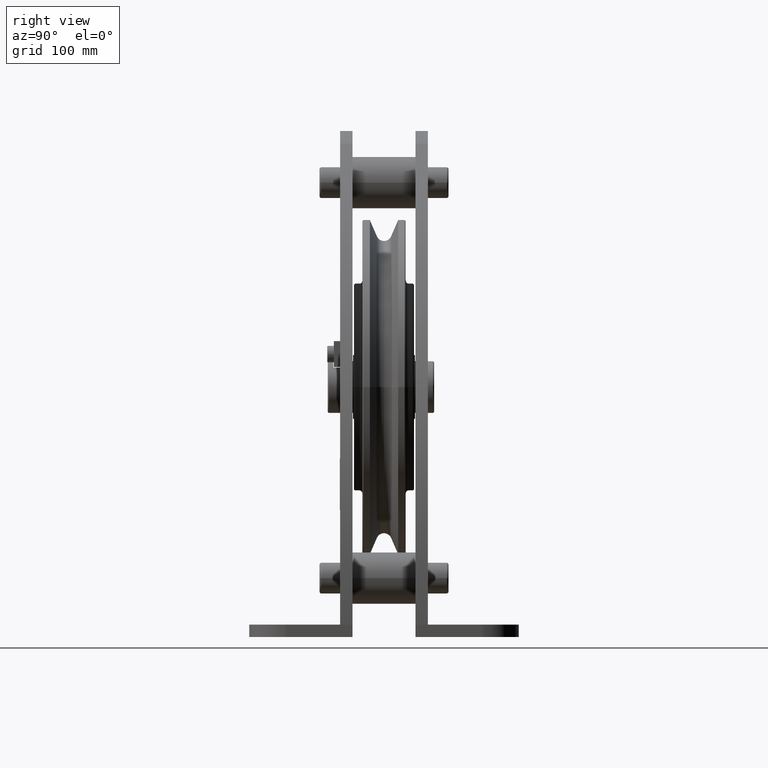
[diagram: clean part render]
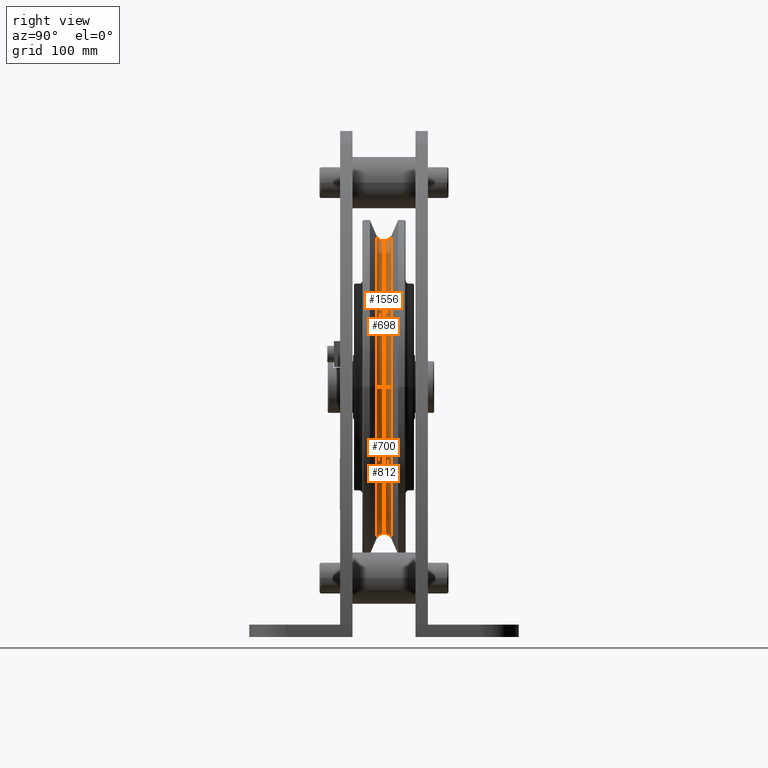
[diagram: same view with one multi-face feature highlighted, each face labeled with its STEP entity id]
A machine part, right view. The highlighted faces form ONE feature: a constant-radius fillet chain: 4 tangent blend faces with common blend radius 7.5 mm. The faces share edges in the B-rep.
Their STEP definitions:
[1] entity #812 (Torus):
#812=ADVANCED_FACE('',(#2191),#2192,.F.);
#2191=FACE_OUTER_BOUND('',#4223,.T.);
#2192=TOROIDAL_SURFACE('',#4224,148.9999994204,7.49999942039999);
#4223=EDGE_LOOP('',(#6764,#6765,#6766,#6767));
#4224=AXIS2_PLACEMENT_3D('',#6768,#6769,#6770);
#6764=ORIENTED_EDGE('',*,*,#12150,.T.);
#6765=ORIENTED_EDGE('',*,*,#12523,.F.);
#6766=ORIENTED_EDGE('',*,*,#12524,.T.);
#6767=ORIENTED_EDGE('',*,*,#12525,.F.);
#6768=CARTESIAN_POINT('',(0.0,0.0,0.0));
#6769=DIRECTION('',(0.0,-1.0,0.0));
#6770=DIRECTION('',(1.0,0.0,0.0));
#12150=EDGE_CURVE('',#14590,#14589,#14598,.T.);
#12523=EDGE_CURVE('',#15217,#14589,#15221,.T.);
#12524=EDGE_CURVE('',#15217,#15215,#15222,.T.);
#12525=EDGE_CURVE('',#14590,#15215,#15223,.T.);
#14589=VERTEX_POINT('',#19338);
#14590=VERTEX_POINT('',#19339);
#14598=CIRCLE('',#19347,141.5);
#15215=VERTEX_POINT('',#22061);
#15217=VERTEX_POINT('',#22064);
#15221=CIRCLE('',#22069,7.49999942039999);
#15222=CIRCLE('',#22070,146.129874);
#15223=CIRCLE('',#22071,7.49999942039999);
#19338=CARTESIAN_POINT('',(-141.5,-9.18485028379985E-016,1.53105609473785E-014));
#19339=CARTESIAN_POINT('',(141.5,-9.18485028379985E-016,-1.53105609473785E-014));
#19347=AXIS2_PLACEMENT_3D('',#26895,#26896,#26897);
#22061=CARTESIAN_POINT('',(146.129874,6.929096,0.0));
#22064=CARTESIAN_POINT('',(-146.129874,6.929096,1.78957482453906E-014));
#22069=AXIS2_PLACEMENT_3D('',#27424,#27425,#27426);
#22070=AXIS2_PLACEMENT_3D('',#27427,#27428,#27429);
#22071=AXIS2_PLACEMENT_3D('',#27430,#27431,#27432);
#26895=CARTESIAN_POINT('',(0.0,-9.18485028379985E-016,0.0));
#26896=DIRECTION('',(-0.0,1.0,0.0));
#26897=DIRECTION('',(0.0,0.0,1.0));
#27424=CARTESIAN_POINT('',(-148.9999994204,0.0,1.8247237236315E-014));
#27425=DIRECTION('',(-1.22464679914735E-016,0.0,-1.0));
#27426=DIRECTION('',(-1.0,0.0,1.22464679914735E-016));
#27427=CARTESIAN_POINT('',(0.0,6.929096,0.0));
#27428=DIRECTION('',(0.0,-1.0,0.0));
#27429=DIRECTION('',(1.0,0.0,0.0));
#27430=CARTESIAN_POINT('',(148.9999994204,0.0,-1.8247237236315E-014));
#27431=DIRECTION('',(-1.22464679914735E-016,-0.0,-1.0));
#27432=DIRECTION('',(1.0,0.0,-1.22464679914735E-016));
[2] entity #700 (Torus):
#700=ADVANCED_FACE('',(#2017),#2018,.F.);
#2017=FACE_OUTER_BOUND('',#4049,.T.);
#2018=TOROIDAL_SURFACE('',#4050,148.9999994204,7.49999942039999);
#4049=EDGE_LOOP('',(#6160,#6161,#6162,#6163));
#4050=AXIS2_PLACEMENT_3D('',#6164,#6165,#6166);
#6160=ORIENTED_EDGE('',*,*,#12150,.F.);
#6161=ORIENTED_EDGE('',*,*,#12148,.F.);
#6162=ORIENTED_EDGE('',*,*,#12151,.F.);
#6163=ORIENTED_EDGE('',*,*,#12146,.F.);
#6164=CARTESIAN_POINT('',(0.0,0.0,0.0));
#6165=DIRECTION('',(0.0,-1.0,0.0));
#6166=DIRECTION('',(1.0,0.0,0.0));
#12146=EDGE_CURVE('',#14589,#14592,#14593,.T.);
#12148=EDGE_CURVE('',#14594,#14590,#14596,.T.);
#12150=EDGE_CURVE('',#14590,#14589,#14598,.T.);
#12151=EDGE_CURVE('',#14592,#14594,#14599,.T.);
#14589=VERTEX_POINT('',#19338);
#14590=VERTEX_POINT('',#19339);
#14592=VERTEX_POINT('',#19341);
#14593=CIRCLE('',#19342,7.49999942039999);
#14594=VERTEX_POINT('',#19343);
#14596=CIRCLE('',#19345,7.49999942039999);
#14598=CIRCLE('',#19347,141.5);
#14599=CIRCLE('',#19348,146.129874);
#19338=CARTESIAN_POINT('',(-141.5,-9.18485028379985E-016,1.53105609473785E-014));
#19339=CARTESIAN_POINT('',(141.5,-9.18485028379985E-016,-1.53105609473785E-014));
#19341=CARTESIAN_POINT('',(-146.129874,-6.929096,1.78957482453906E-014));
#19342=AXIS2_PLACEMENT_3D('',#26886,#26887,#26888);
#19343=CARTESIAN_POINT('',(146.129874,-6.929096,0.0));
#19345=AXIS2_PLACEMENT_3D('',#26892,#26893,#26894);
#19347=AXIS2_PLACEMENT_3D('',#26895,#26896,#26897);
#19348=AXIS2_PLACEMENT_3D('',#26898,#26899,#26900);
#26886=CARTESIAN_POINT('',(-148.9999994204,0.0,1.8247237236315E-014));
#26887=DIRECTION('',(-1.22464679914735E-016,0.0,-1.0));
#26888=DIRECTION('',(-1.0,0.0,1.22464679914735E-016));
#26892=CARTESIAN_POINT('',(148.9999994204,0.0,-1.8247237236315E-014));
#26893=DIRECTION('',(-1.22464679914735E-016,-0.0,-1.0));
#26894=DIRECTION('',(1.0,0.0,-1.22464679914735E-016));
#26895=CARTESIAN_POINT('',(0.0,-9.18485028379985E-016,0.0));
#26896=DIRECTION('',(-0.0,1.0,0.0));
#26897=DIRECTION('',(0.0,0.0,1.0));
#26898=CARTESIAN_POINT('',(0.0,-6.929096,0.0));
#26899=DIRECTION('',(0.0,-1.0,0.0));
#26900=DIRECTION('',(1.0,0.0,0.0));
[3] entity #698 (Torus):
#698=ADVANCED_FACE('',(#2014),#2015,.F.);
#2014=FACE_OUTER_BOUND('',#4046,.T.);
#2015=TOROIDAL_SURFACE('',#4047,148.9999994204,7.49999942039999);
#4046=EDGE_LOOP('',(#6152,#6153,#6154,#6155));
#4047=AXIS2_PLACEMENT_3D('',#6156,#6157,#6158);
#6152=ORIENTED_EDGE('',*,*,#12145,.F.);
#6153=ORIENTED_EDGE('',*,*,#12146,.T.);
#6154=ORIENTED_EDGE('',*,*,#12147,.F.);
#6155=ORIENTED_EDGE('',*,*,#12148,.T.);
#6156=CARTESIAN_POINT('',(0.0,0.0,0.0));
#6157=DIRECTION('',(0.0,-1.0,0.0));
#6158=DIRECTION('',(1.0,0.0,0.0));
#12145=EDGE_CURVE('',#14589,#14590,#14591,.T.);
#12146=EDGE_CURVE('',#14589,#14592,#14593,.T.);
#12147=EDGE_CURVE('',#14594,#14592,#14595,.T.);
#12148=EDGE_CURVE('',#14594,#14590,#14596,.T.);
#14589=VERTEX_POINT('',#19338);
#14590=VERTEX_POINT('',#19339);
#14591=CIRCLE('',#19340,141.5);
#14592=VERTEX_POINT('',#19341);
#14593=CIRCLE('',#19342,7.49999942039999);
#14594=VERTEX_POINT('',#19343);
#14595=CIRCLE('',#19344,146.129874);
#14596=CIRCLE('',#19345,7.49999942039999);
#19338=CARTESIAN_POINT('',(-141.5,-9.18485028379985E-016,1.53105609473785E-014));
#19339=CARTESIAN_POINT('',(141.5,-9.18485028379985E-016,-1.53105609473785E-014));
#19340=AXIS2_PLACEMENT_3D('',#26883,#26884,#26885);
#19341=CARTESIAN_POINT('',(-146.129874,-6.929096,1.78957482453906E-014));
#19342=AXIS2_PLACEMENT_3D('',#26886,#26887,#26888);
#19343=CARTESIAN_POINT('',(146.129874,-6.929096,0.0));
#19344=AXIS2_PLACEMENT_3D('',#26889,#26890,#26891);
#19345=AXIS2_PLACEMENT_3D('',#26892,#26893,#26894);
#26883=CARTESIAN_POINT('',(0.0,-9.18485028379985E-016,0.0));
#26884=DIRECTION('',(-0.0,1.0,0.0));
#26885=DIRECTION('',(0.0,0.0,1.0));
#26886=CARTESIAN_POINT('',(-148.9999994204,0.0,1.8247237236315E-014));
#26887=DIRECTION('',(-1.22464679914735E-016,0.0,-1.0));
#26888=DIRECTION('',(-1.0,0.0,1.22464679914735E-016));
#26889=CARTESIAN_POINT('',(0.0,-6.929096,0.0));
#26890=DIRECTION('',(0.0,-1.0,0.0));
#26891=DIRECTION('',(1.0,0.0,0.0));
#26892=CARTESIAN_POINT('',(148.9999994204,0.0,-1.8247237236315E-014));
#26893=DIRECTION('',(-1.22464679914735E-016,-0.0,-1.0));
#26894=DIRECTION('',(1.0,0.0,-1.22464679914735E-016));
[4] entity #1556 (Torus):
#1556=ADVANCED_FACE('',(#3359),#3360,.F.);
#3359=FACE_OUTER_BOUND('',#5391,.T.);
#3360=TOROIDAL_SURFACE('',#5392,148.9999994204,7.49999942039999);
#5391=EDGE_LOOP('',(#10289,#10290,#10291,#10292));
#5392=AXIS2_PLACEMENT_3D('',#10293,#10294,#10295);
#10289=ORIENTED_EDGE('',*,*,#12145,.T.);
#10290=ORIENTED_EDGE('',*,*,#12525,.T.);
#10291=ORIENTED_EDGE('',*,*,#12521,.T.);
#10292=ORIENTED_EDGE('',*,*,#12523,.T.);
#10293=CARTESIAN_POINT('',(0.0,0.0,0.0));
#10294=DIRECTION('',(0.0,-1.0,0.0));
#10295=DIRECTION('',(1.0,0.0,0.0));
#12145=EDGE_CURVE('',#14589,#14590,#14591,.T.);
#12521=EDGE_CURVE('',#15215,#15217,#15219,.T.);
#12523=EDGE_CURVE('',#15217,#14589,#15221,.T.);
#12525=EDGE_CURVE('',#14590,#15215,#15223,.T.);
#14589=VERTEX_POINT('',#19338);
#14590=VERTEX_POINT('',#19339);
#14591=CIRCLE('',#19340,141.5);
#15215=VERTEX_POINT('',#22061);
#15217=VERTEX_POINT('',#22064);
#15219=CIRCLE('',#22067,146.129874);
#15221=CIRCLE('',#22069,7.49999942039999);
#15223=CIRCLE('',#22071,7.49999942039999);
#19338=CARTESIAN_POINT('',(-141.5,-9.18485028379985E-016,1.53105609473785E-014));
#19339=CARTESIAN_POINT('',(141.5,-9.18485028379985E-016,-1.53105609473785E-014));
#19340=AXIS2_PLACEMENT_3D('',#26883,#26884,#26885);
#22061=CARTESIAN_POINT('',(146.129874,6.929096,0.0));
#22064=CARTESIAN_POINT('',(-146.129874,6.929096,1.78957482453906E-014));
#22067=AXIS2_PLACEMENT_3D('',#27421,#27422,#27423);
#22069=AXIS2_PLACEMENT_3D('',#27424,#27425,#27426);
#22071=AXIS2_PLACEMENT_3D('',#27430,#27431,#27432);
#26883=CARTESIAN_POINT('',(0.0,-9.18485028379985E-016,0.0));
#26884=DIRECTION('',(-0.0,1.0,0.0));
#26885=DIRECTION('',(0.0,0.0,1.0));
#27421=CARTESIAN_POINT('',(0.0,6.929096,0.0));
#27422=DIRECTION('',(0.0,-1.0,0.0));
#27423=DIRECTION('',(1.0,0.0,0.0));
#27424=CARTESIAN_POINT('',(-148.9999994204,0.0,1.8247237236315E-014));
#27425=DIRECTION('',(-1.22464679914735E-016,0.0,-1.0));
#27426=DIRECTION('',(-1.0,0.0,1.22464679914735E-016));
#27430=CARTESIAN_POINT('',(148.9999994204,0.0,-1.8247237236315E-014));
#27431=DIRECTION('',(-1.22464679914735E-016,-0.0,-1.0));
#27432=DIRECTION('',(1.0,0.0,-1.22464679914735E-016));